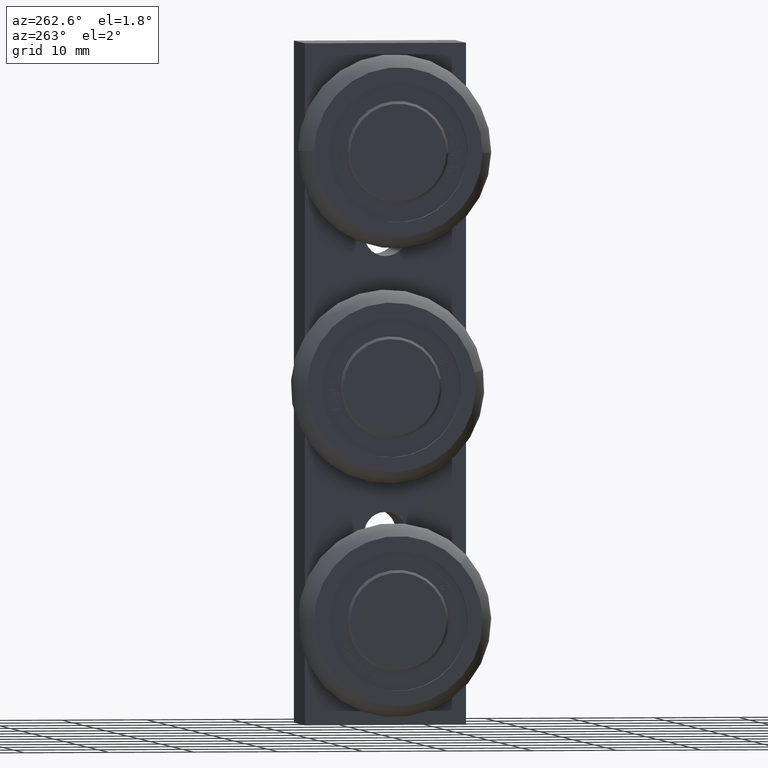
[diagram: clean part render]
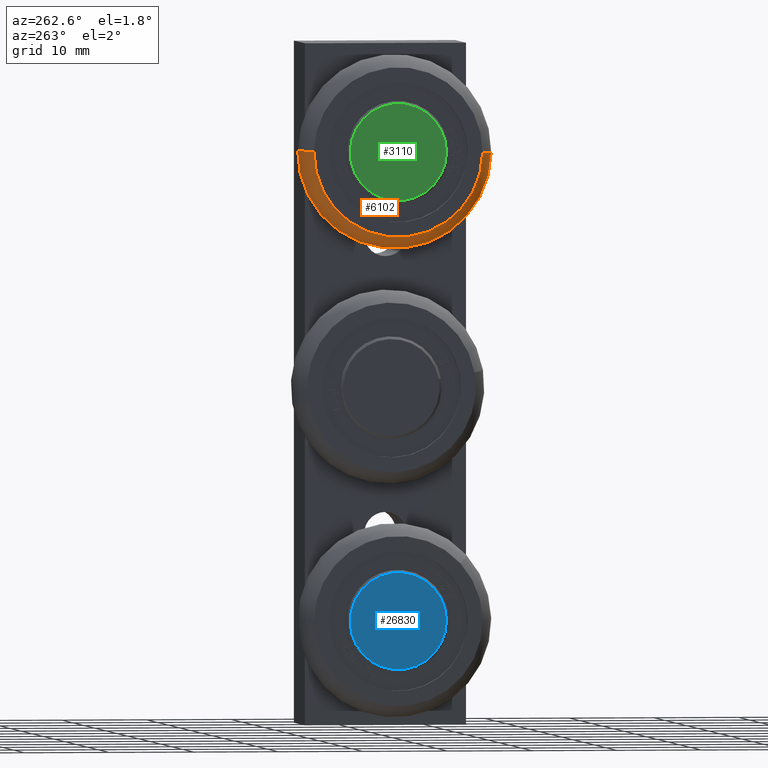
[diagram: same view with three faces highlighted in distinct colors, each labeled with its STEP entity id]
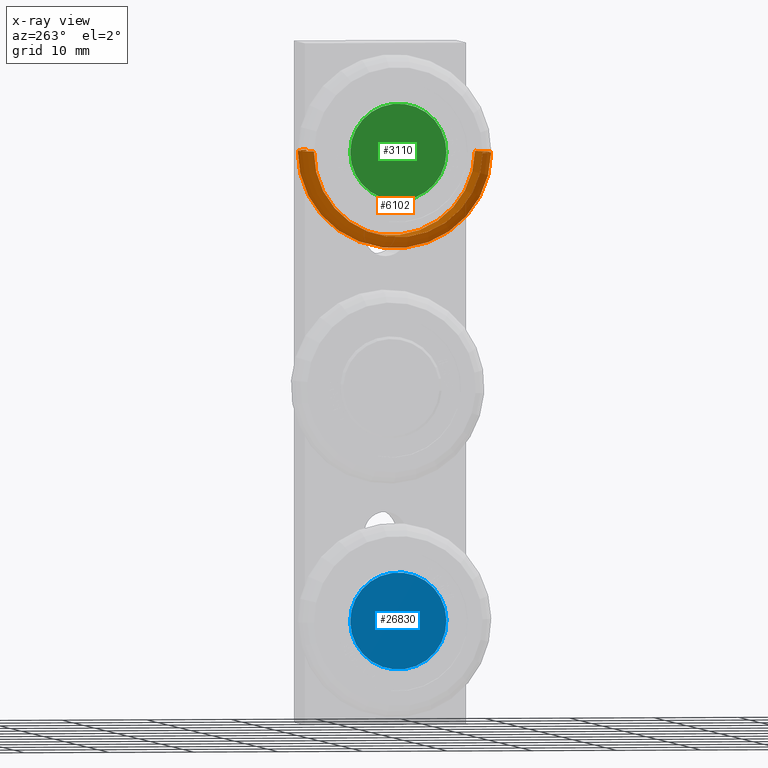
[diagram: x-ray of the same camera — body ghosted, the three highlighted faces saturated]
A machine part, auxiliary view with three faces highlighted in distinct colors.
The next image is the same camera in x-ray (body ghosted, the three faces saturated) — at least one of them is partly hidden behind the body in this view.
Their STEP definitions:

[orange] entity #6102 — the highlighted toroidal blend (fillet) surface has major radius 6.4 mm and minor (blend) radius 5 mm.
#985 = VERTEX_POINT ( 'NONE', #24855 ) ;
#1965 = CIRCLE ( 'NONE', #5009, 0.3925478037114736862 ) ;
#2503 = CIRCLE ( 'NONE', #51537, 0.1968503937007874127 ) ;
#5009 = AXIS2_PLACEMENT_3D ( 'NONE', #16832, #59776, #25790 ) ;
#5889 = VERTEX_POINT ( 'NONE', #26241 ) ;
#6102 = ADVANCED_FACE ( 'NONE', ( #7397 ), #40130, .T. ) ;
#7278 = DIRECTION ( 'NONE',  ( 0.000000000000000000, 0.9999391904923112806, 0.01102793351364130675 ) ) ;
#7397 = FACE_OUTER_BOUND ( 'NONE', #9272, .T. ) ;
#7511 = EDGE_CURVE ( 'NONE', #33016, #25006, #1965, .T. ) ;
#9272 = EDGE_LOOP ( 'NONE', ( #16267, #55335, #29622, #61344 ) ) ;
#9567 = AXIS2_PLACEMENT_3D ( 'NONE', #43759, #63304, #46821 ) ;
#12530 = CARTESIAN_POINT ( 'NONE',  ( 0.3937007871274187387, -0.008661417322834277788, -1.279527559055118280 ) ) ;
#16267 = ORIENTED_EDGE ( 'NONE', *, *, #7511, .T. ) ;
#16832 = CARTESIAN_POINT ( 'NONE',  ( 0.5314960627179698971, -0.008661417322834277788, -1.279527559055118280 ) ) ;
#18369 = DIRECTION ( 'NONE',  ( -5.538058479712250173E-17, -0.01102793351364159818, 0.9999391904923112806 ) ) ;
#18692 = DIRECTION ( 'NONE',  ( 0.000000000000000000, -0.9999391904923112806, -0.01102793351364095287 ) ) ;
#24855 = CARTESIAN_POINT ( 'NONE',  ( 0.2559055115368675248, -0.4011853503956198663, -1.283856550135374253 ) ) ;
#25006 = VERTEX_POINT ( 'NONE', #31866 ) ;
#25790 = DIRECTION ( 'NONE',  ( 0.000000000000000000, 0.9999391904923112806, 0.01102793351364130675 ) ) ;
#26032 = AXIS2_PLACEMENT_3D ( 'NONE', #38210, #48225, #7278 ) ;
#26241 = CARTESIAN_POINT ( 'NONE',  ( 0.2559055115368675248, 0.3838625157499512830, -1.275198567974861863 ) ) ;
#28971 = CIRCLE ( 'NONE', #9567, 0.1968503937007874127 ) ;
#29622 = ORIENTED_EDGE ( 'NONE', *, *, #42943, .F. ) ;
#31866 = CARTESIAN_POINT ( 'NONE',  ( 0.5314960627179698971, -0.4011853503956198663, -1.283856550135374253 ) ) ;
#32225 = EDGE_CURVE ( 'NONE', #25006, #985, #28971, .T. ) ;
#33016 = VERTEX_POINT ( 'NONE', #56695 ) ;
#38210 = CARTESIAN_POINT ( 'NONE',  ( 0.2559055115368675248, -0.008661417322834277788, -1.279527559055118280 ) ) ;
#40130 = TOROIDAL_SURFACE ( 'NONE', #53476, 0.2519685039370078705, 0.1968503937007874127 ) ;
#41031 = DIRECTION ( 'NONE',  ( -1.000000000000000000, -4.122974739858164500E-35, -5.538395266801810043E-17 ) ) ;
#41487 = EDGE_CURVE ( 'NONE', #33016, #5889, #2503, .T. ) ;
#42943 = EDGE_CURVE ( 'NONE', #5889, #985, #53708, .T. ) ;
#43646 = CARTESIAN_POINT ( 'NONE',  ( 0.3937007871274187387, 0.2432917645334961299, -1.276748867146169086 ) ) ;
#43759 = CARTESIAN_POINT ( 'NONE',  ( 0.3937007871274187387, -0.2606145991791646854, -1.282306250964067473 ) ) ;
#46821 = DIRECTION ( 'NONE',  ( 0.000000000000000000, 0.9999391904923112806, 0.01102793351364234065 ) ) ;
#48225 = DIRECTION ( 'NONE',  ( -1.000000000000000000, -4.122974739858164500E-35, -5.538395266801810043E-17 ) ) ;
#50989 = DIRECTION ( 'NONE',  ( -6.107705477455760555E-19, 0.9999391904923111696, 0.01102793351364158604 ) ) ;
#51537 = AXIS2_PLACEMENT_3D ( 'NONE', #43646, #18369, #18692 ) ;
#53476 = AXIS2_PLACEMENT_3D ( 'NONE', #12530, #41031, #50989 ) ;
#53708 = CIRCLE ( 'NONE', #26032, 0.3925478037114736862 ) ;
#55335 = ORIENTED_EDGE ( 'NONE', *, *, #32225, .T. ) ;
#56695 = CARTESIAN_POINT ( 'NONE',  ( 0.5314960627179698971, 0.3838625157499512830, -1.275198567974861863 ) ) ;
#59776 = DIRECTION ( 'NONE',  ( -1.000000000000000000, -4.122974739858164500E-35, -5.538395266801810043E-17 ) ) ;
#61344 = ORIENTED_EDGE ( 'NONE', *, *, #41487, .F. ) ;
#63304 = DIRECTION ( 'NONE',  ( 5.538058479712250173E-17, 0.01102793351364172135, -0.9999391904923112806 ) ) ;

[blue] entity #26830 — the highlighted planar face has unit normal (1, 0, 0).
#1366 = DIRECTION ( 'NONE',  ( -4.093669218709892916E-17, 0.7374498867183978401, -0.6754018541424225974 ) ) ;
#4638 = CARTESIAN_POINT ( 'NONE',  ( 0.2559055115368674693, -0.008661417322834357585, -3.444881889763779625 ) ) ;
#6420 = CARTESIAN_POINT ( 'NONE',  ( 0.2559055115368674693, -0.008661417322834357585, -3.444881889763779625 ) ) ;
#9079 = DIRECTION ( 'NONE',  ( 0.000000000000000000, 0.7374498867183978401, -0.6754018541424224864 ) ) ;
#10338 = DIRECTION ( 'NONE',  ( -1.000000000000000000, -4.122974739858164500E-35, -5.538395266801810043E-17 ) ) ;
#10710 = EDGE_LOOP ( 'NONE', ( #26958, #18664 ) ) ;
#13171 = AXIS2_PLACEMENT_3D ( 'NONE', #4638, #10338, #9079 ) ;
#14707 = EDGE_CURVE ( 'NONE', #43174, #48842, #38489, .T. ) ;
#15996 = FACE_OUTER_BOUND ( 'NONE', #10710, .T. ) ;
#16774 = EDGE_CURVE ( 'NONE', #48842, #43174, #27426, .T. ) ;
#18664 = ORIENTED_EDGE ( 'NONE', *, *, #14707, .T. ) ;
#22194 = DIRECTION ( 'NONE',  ( 0.000000000000000000, 0.7374498867183978401, -0.6754018541424224864 ) ) ;
#26830 = ADVANCED_FACE ( 'NONE', ( #15996 ), #55461, .F. ) ;
#26958 = ORIENTED_EDGE ( 'NONE', *, *, #16774, .T. ) ;
#27426 = CIRCLE ( 'NONE', #13171, 0.2239665354330708791 ) ;
#31023 = DIRECTION ( 'NONE',  ( 1.000000000000000000, 5.777412239459151569E-17, 2.470866518668935535E-18 ) ) ;
#31994 = AXIS2_PLACEMENT_3D ( 'NONE', #6420, #31023, #1366 ) ;
#32662 = CARTESIAN_POINT ( 'NONE',  ( 0.2559055115368674693, -0.1738255135066644752, -3.293614476466428798 ) ) ;
#35981 = DIRECTION ( 'NONE',  ( -1.000000000000000000, -4.122974739858164500E-35, -5.538395266801810043E-17 ) ) ;
#38489 = CIRCLE ( 'NONE', #45686, 0.2239665354330708791 ) ;
#43174 = VERTEX_POINT ( 'NONE', #32662 ) ;
#45686 = AXIS2_PLACEMENT_3D ( 'NONE', #61647, #35981, #22194 ) ;
#48842 = VERTEX_POINT ( 'NONE', #52758 ) ;
#52758 = CARTESIAN_POINT ( 'NONE',  ( 0.2559055115368674693, 0.1565026788609958086, -3.596149303061130009 ) ) ;
#55461 = PLANE ( 'NONE',  #31994 ) ;
#61647 = CARTESIAN_POINT ( 'NONE',  ( 0.2559055115368674693, -0.008661417322834357585, -3.444881889763779625 ) ) ;

[green] entity #3110 — the highlighted planar face has unit normal (1, 0, 0).
#3110 = ADVANCED_FACE ( 'NONE', ( #14300 ), #4423, .F. ) ;
#3428 = VERTEX_POINT ( 'NONE', #23818 ) ;
#4423 = PLANE ( 'NONE',  #38994 ) ;
#5232 = AXIS2_PLACEMENT_3D ( 'NONE', #37492, #47181, #51343 ) ;
#5652 = DIRECTION ( 'NONE',  ( 1.000000000000000000, 9.629649721936183542E-35, 5.538395266801810043E-17 ) ) ;
#9076 = DIRECTION ( 'NONE',  ( -1.000000000000000000, -4.122974739858164500E-35, -5.538395266801810043E-17 ) ) ;
#14300 = FACE_OUTER_BOUND ( 'NONE', #54439, .T. ) ;
#23818 = CARTESIAN_POINT ( 'NONE',  ( 0.2559055115368675248, 0.2152914988154781550, -1.277057670993081651 ) ) ;
#28891 = CARTESIAN_POINT ( 'NONE',  ( 0.2559055115368675248, -0.008661417322834277788, -1.279527559055118280 ) ) ;
#32157 = CIRCLE ( 'NONE', #40374, 0.2239665354330708791 ) ;
#34097 = DIRECTION ( 'NONE',  ( 6.107705477455767296E-19, -0.9999391904923110586, -0.01102793351364159645 ) ) ;
#36914 = CIRCLE ( 'NONE', #5232, 0.2239665354330708791 ) ;
#37492 = CARTESIAN_POINT ( 'NONE',  ( 0.2559055115368675248, -0.008661417322834277788, -1.279527559055118280 ) ) ;
#38994 = AXIS2_PLACEMENT_3D ( 'NONE', #49568, #5652, #34097 ) ;
#40374 = AXIS2_PLACEMENT_3D ( 'NONE', #28891, #9076, #41532 ) ;
#40635 = ORIENTED_EDGE ( 'NONE', *, *, #53406, .T. ) ;
#41532 = DIRECTION ( 'NONE',  ( 0.000000000000000000, -0.9999391904923112806, -0.01102793351364228513 ) ) ;
#42910 = EDGE_CURVE ( 'NONE', #3428, #57617, #32157, .T. ) ;
#43162 = ORIENTED_EDGE ( 'NONE', *, *, #42910, .T. ) ;
#47181 = DIRECTION ( 'NONE',  ( -1.000000000000000000, -4.122974739858164500E-35, -5.538395266801810043E-17 ) ) ;
#49568 = CARTESIAN_POINT ( 'NONE',  ( 0.2559055115368675248, -0.008661417322834277788, -1.279527559055118280 ) ) ;
#51343 = DIRECTION ( 'NONE',  ( 0.000000000000000000, -0.9999391904923112806, -0.01102793351364106562 ) ) ;
#51649 = CARTESIAN_POINT ( 'NONE',  ( 0.2559055115368675248, -0.2326143334611467384, -1.281997447117154687 ) ) ;
#53406 = EDGE_CURVE ( 'NONE', #57617, #3428, #36914, .T. ) ;
#54439 = EDGE_LOOP ( 'NONE', ( #40635, #43162 ) ) ;
#57617 = VERTEX_POINT ( 'NONE', #51649 ) ;